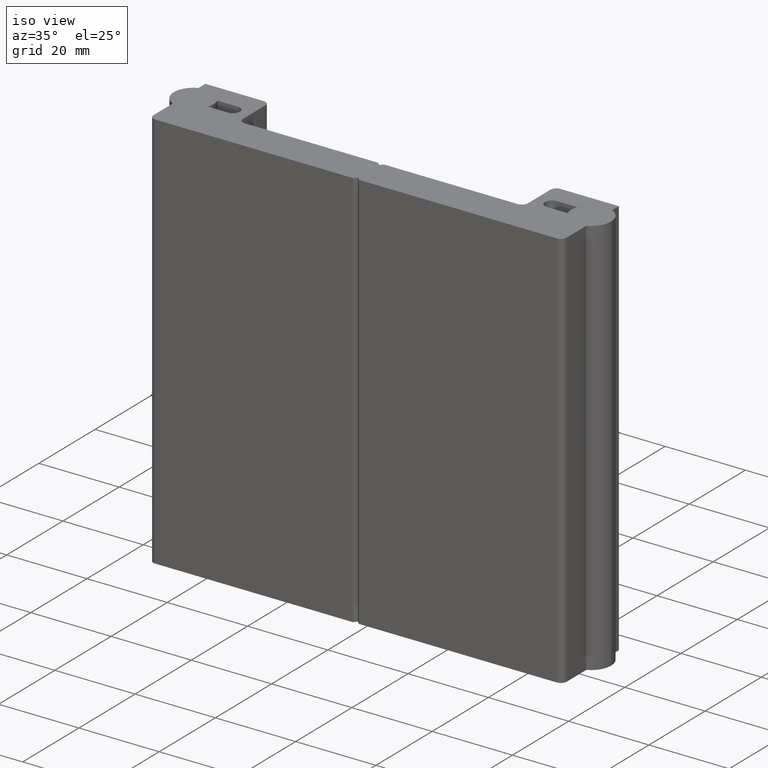
[diagram: clean part render]
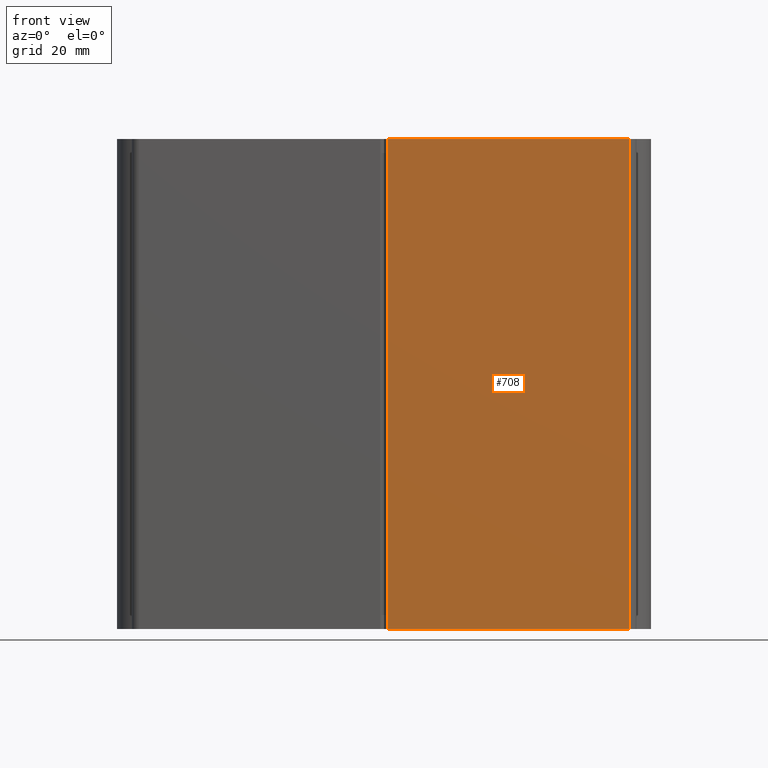
[diagram: tour spotlight — one face highlighted and labeled with its STEP entity id]
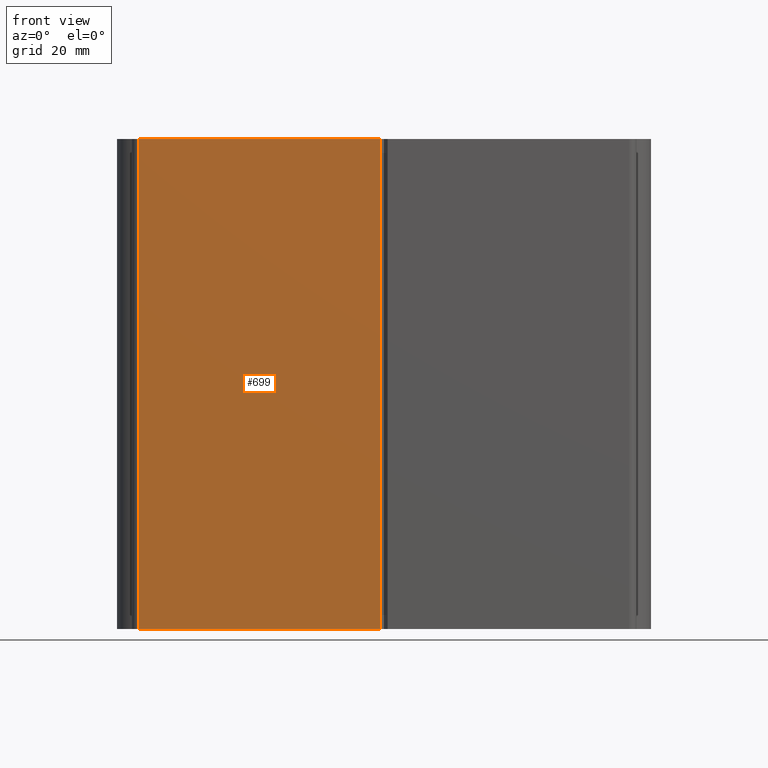
[diagram: tour spotlight — one face highlighted and labeled with its STEP entity id]
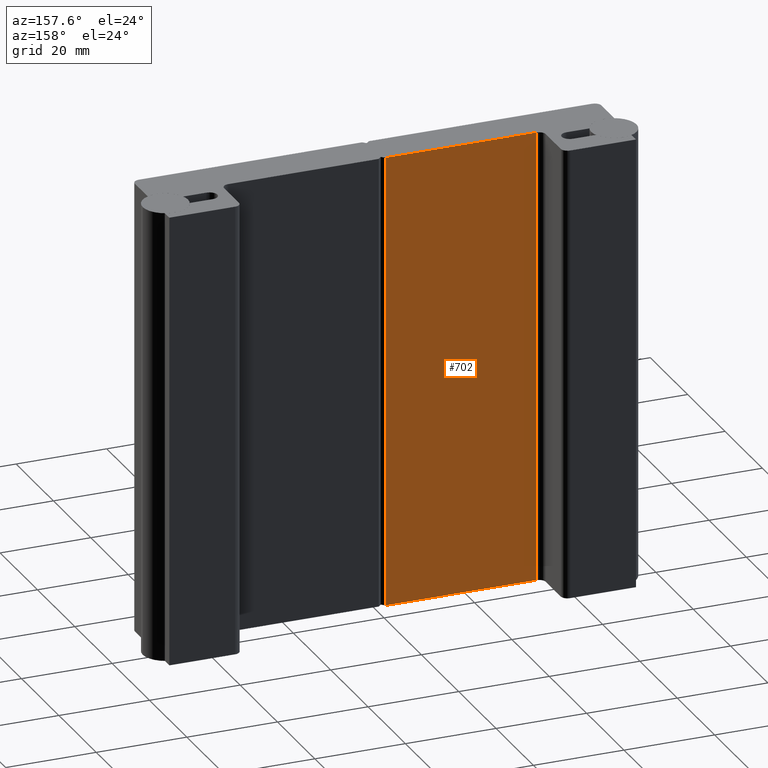
[diagram: tour spotlight — one face highlighted and labeled with its STEP entity id]
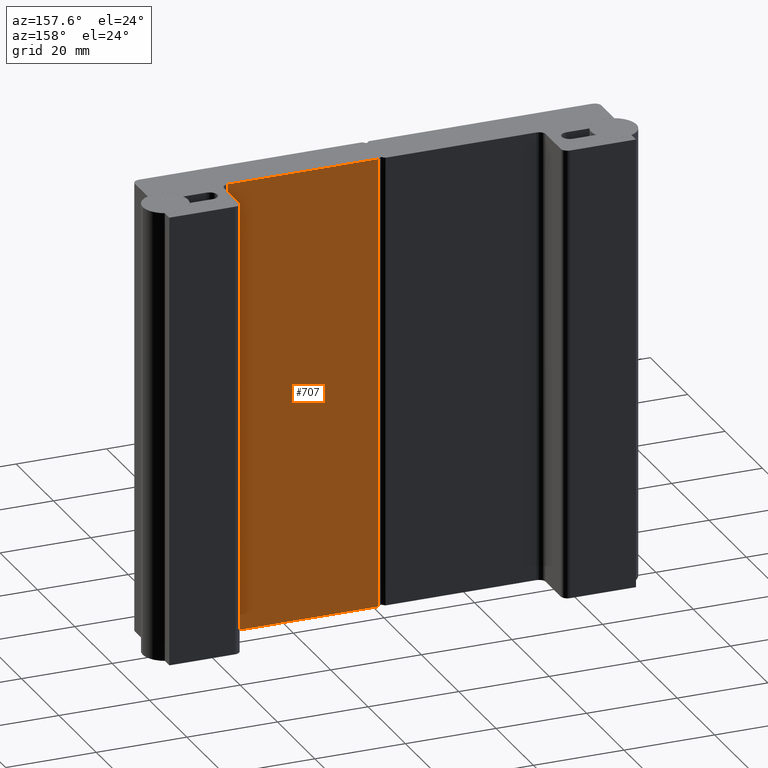
[diagram: tour spotlight — one face highlighted and labeled with its STEP entity id]
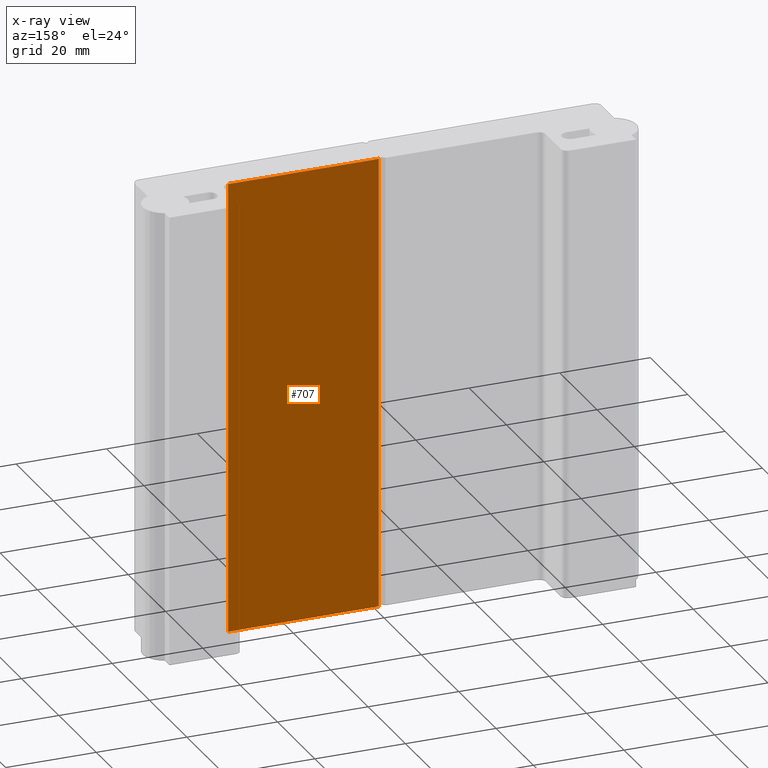
[diagram: x-ray of the same camera — body ghosted, this tour face saturated]
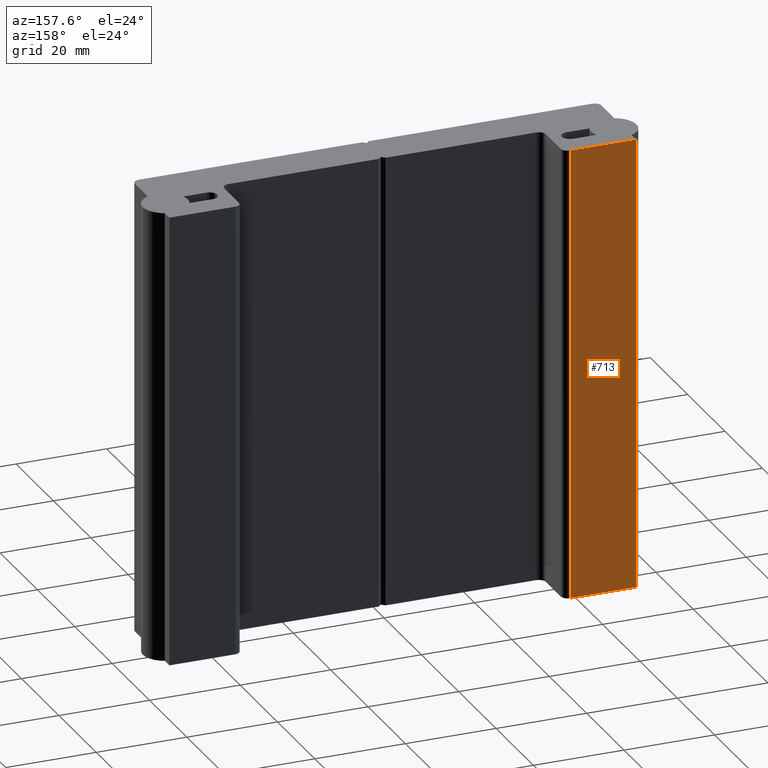
[diagram: tour spotlight — one face highlighted and labeled with its STEP entity id]
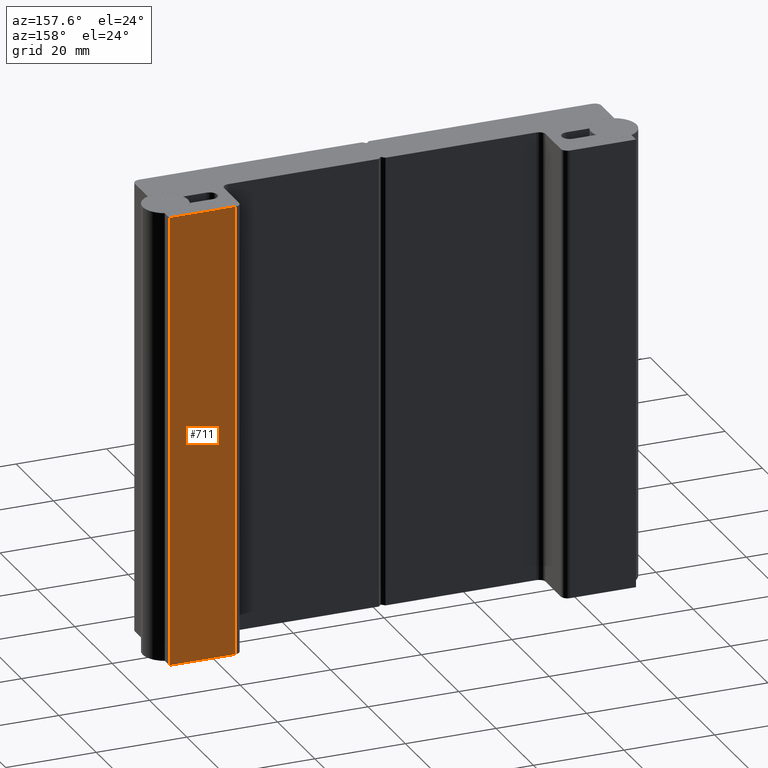
[diagram: tour spotlight — one face highlighted and labeled with its STEP entity id]
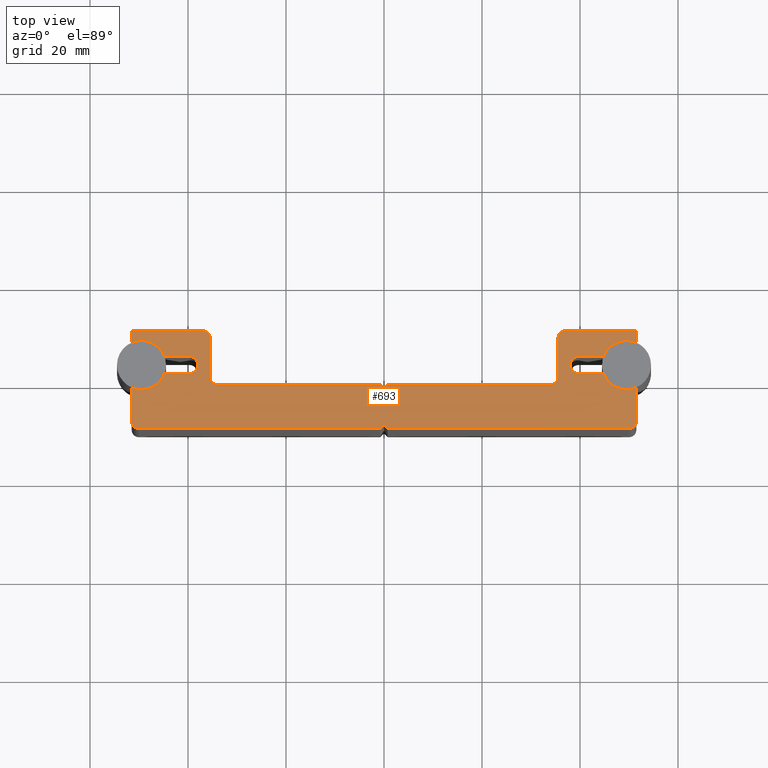
[diagram: tour spotlight — one face highlighted and labeled with its STEP entity id]
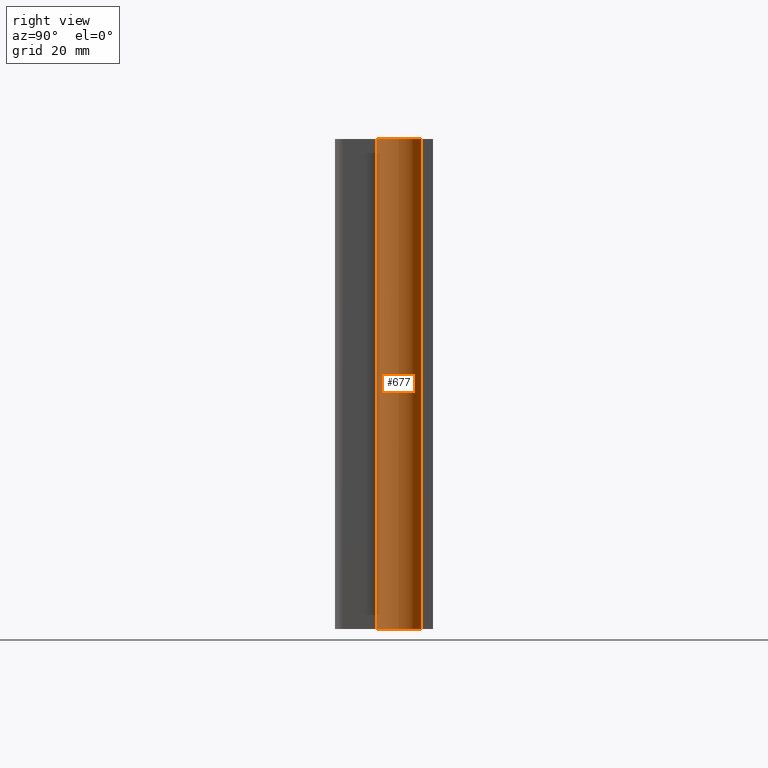
[diagram: tour spotlight — one face highlighted and labeled with its STEP entity id]
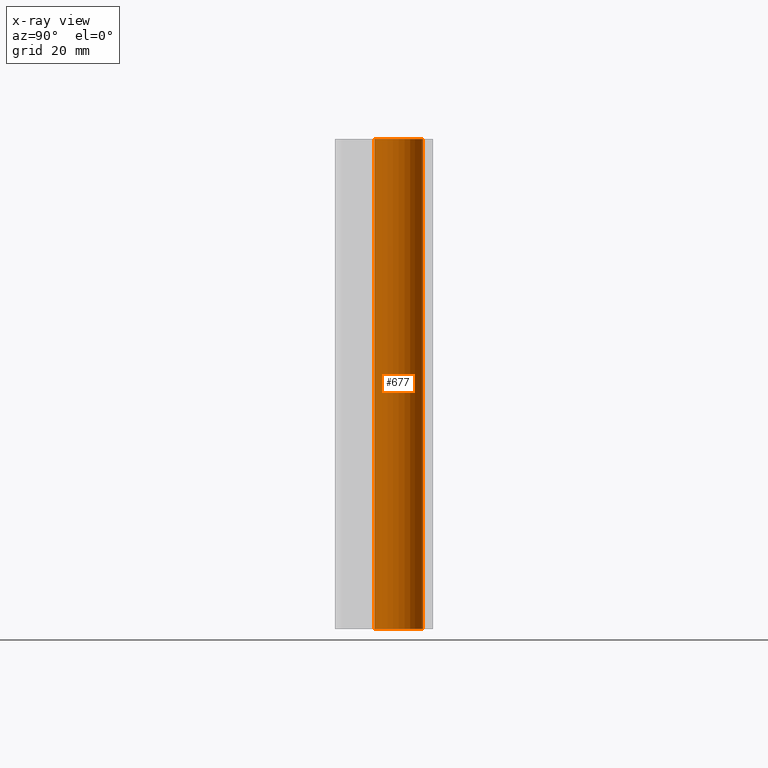
[diagram: x-ray of the same camera — body ghosted, this tour face saturated]
A machine part: a face-by-face anatomy tour. The part has 40 B-rep faces; the first image is the clean iso view, then the 8 largest visible faces are spotlighted one at a time (largest first), each with its STEP entity span.

Face 1 — front view, entity #708. In plain terms, the highlighted planar face has unit normal (0, -1, 0).
Definition (entity closure, byte-faithful):
#49=PLANE('',#820);
#86=FACE_OUTER_BOUND('',#123,.T.);
#123=EDGE_LOOP('',(#640,#641,#642,#643));
#161=LINE('',#1150,#234);
#174=LINE('',#1182,#247);
#188=LINE('',#1214,#261);
#198=LINE('',#1233,#271);
#234=VECTOR('',#933,10.);
#247=VECTOR('',#958,10.);
#261=VECTOR('',#986,10.);
#271=VECTOR('',#1014,10.);
#341=VERTEX_POINT('',#1147);
#342=VERTEX_POINT('',#1149);
#354=VERTEX_POINT('',#1179);
#355=VERTEX_POINT('',#1181);
#418=EDGE_CURVE('',#341,#342,#161,.T.);
#434=EDGE_CURVE('',#354,#355,#174,.T.);
#452=EDGE_CURVE('',#355,#341,#188,.T.);
#462=EDGE_CURVE('',#354,#342,#198,.T.);
#640=ORIENTED_EDGE('',*,*,#452,.F.);
#641=ORIENTED_EDGE('',*,*,#434,.F.);
#642=ORIENTED_EDGE('',*,*,#462,.T.);
#643=ORIENTED_EDGE('',*,*,#418,.F.);
#708=ADVANCED_FACE('',(#86),#49,.T.);
#820=AXIS2_PLACEMENT_3D('',#1237,#1020,#1021);
#933=DIRECTION('',(-1.,0.,0.));
#958=DIRECTION('',(1.,0.,0.));
#986=DIRECTION('',(0.,0.,-1.));
#1014=DIRECTION('',(0.,0.,-1.));
#1020=DIRECTION('center_axis',(0.,-1.,0.));
#1021=DIRECTION('ref_axis',(1.,0.,0.));
#1147=CARTESIAN_POINT('',(50.,-10.,0.));
#1149=CARTESIAN_POINT('',(0.75,-10.,0.));
#1150=CARTESIAN_POINT('',(51.5,-10.,0.));
#1179=CARTESIAN_POINT('',(0.75,-10.,100.));
#1181=CARTESIAN_POINT('',(50.,-10.,100.));
#1182=CARTESIAN_POINT('',(51.5,-10.,100.));
#1214=CARTESIAN_POINT('',(50.,-10.,0.));
#1233=CARTESIAN_POINT('',(0.749999999999997,-10.,50.));
#1237=CARTESIAN_POINT('Origin',(-51.5,-10.,0.));

Face 2 — front view, entity #699. In plain terms, the highlighted planar face has unit normal (0, -1, 0).
Definition (entity closure, byte-faithful):
#42=PLANE('',#811);
#77=FACE_OUTER_BOUND('',#114,.T.);
#114=EDGE_LOOP('',(#604,#605,#606,#607));
#164=LINE('',#1156,#237);
#171=LINE('',#1176,#244);
#191=LINE('',#1219,#264);
#192=LINE('',#1221,#265);
#237=VECTOR('',#936,10.);
#244=VECTOR('',#955,10.);
#264=VECTOR('',#993,10.);
#265=VECTOR('',#996,10.);
#344=VERTEX_POINT('',#1153);
#345=VERTEX_POINT('',#1155);
#351=VERTEX_POINT('',#1173);
#352=VERTEX_POINT('',#1175);
#421=EDGE_CURVE('',#344,#345,#164,.T.);
#431=EDGE_CURVE('',#351,#352,#171,.T.);
#455=EDGE_CURVE('',#345,#351,#191,.T.);
#456=EDGE_CURVE('',#344,#352,#192,.T.);
#604=ORIENTED_EDGE('',*,*,#455,.F.);
#605=ORIENTED_EDGE('',*,*,#421,.F.);
#606=ORIENTED_EDGE('',*,*,#456,.T.);
#607=ORIENTED_EDGE('',*,*,#431,.F.);
#699=ADVANCED_FACE('',(#77),#42,.T.);
#811=AXIS2_PLACEMENT_3D('',#1220,#994,#995);
#936=DIRECTION('',(-1.,0.,0.));
#955=DIRECTION('',(1.,0.,0.));
#993=DIRECTION('',(0.,0.,1.));
#994=DIRECTION('center_axis',(0.,-1.,0.));
#995=DIRECTION('ref_axis',(1.,0.,0.));
#996=DIRECTION('',(0.,0.,1.));
#1153=CARTESIAN_POINT('',(-0.749999999999997,-10.,0.));
#1155=CARTESIAN_POINT('',(-50.,-10.,0.));
#1156=CARTESIAN_POINT('',(51.5,-10.,0.));
#1173=CARTESIAN_POINT('',(-50.,-10.,100.));
#1175=CARTESIAN_POINT('',(-0.749999999999997,-10.,100.));
#1176=CARTESIAN_POINT('',(51.5,-10.,100.));
#1219=CARTESIAN_POINT('',(-50.,-10.,0.));
#1220=CARTESIAN_POINT('Origin',(-51.5,-10.,0.));
#1221=CARTESIAN_POINT('',(-0.750000000000002,-10.,50.));

Face 3 — auxiliary view, entity #702. In plain terms, the highlighted planar face has unit normal (0, -1, 0).
Definition (entity closure, byte-faithful):
#43=PLANE('',#814);
#80=FACE_OUTER_BOUND('',#117,.T.);
#117=EDGE_LOOP('',(#616,#617,#618,#619));
#153=LINE('',#1129,#226);
#182=LINE('',#1203,#255);
#194=LINE('',#1225,#267);
#195=LINE('',#1227,#268);
#226=VECTOR('',#919,10.);
#255=VECTOR('',#972,10.);
#267=VECTOR('',#1002,10.);
#268=VECTOR('',#1005,10.);
#331=VERTEX_POINT('',#1126);
#332=VERTEX_POINT('',#1128);
#364=VERTEX_POINT('',#1200);
#365=VERTEX_POINT('',#1202);
#407=EDGE_CURVE('',#331,#332,#153,.T.);
#445=EDGE_CURVE('',#364,#365,#182,.T.);
#458=EDGE_CURVE('',#365,#331,#194,.T.);
#459=EDGE_CURVE('',#364,#332,#195,.T.);
#616=ORIENTED_EDGE('',*,*,#458,.F.);
#617=ORIENTED_EDGE('',*,*,#445,.F.);
#618=ORIENTED_EDGE('',*,*,#459,.T.);
#619=ORIENTED_EDGE('',*,*,#407,.F.);
#702=ADVANCED_FACE('',(#80),#43,.F.);
#814=AXIS2_PLACEMENT_3D('',#1226,#1003,#1004);
#919=DIRECTION('',(1.,1.2314093406934E-16,0.));
#972=DIRECTION('',(-1.,-1.2314093406934E-16,0.));
#1002=DIRECTION('',(0.,0.,-1.));
#1003=DIRECTION('center_axis',(1.2314093406934E-16,-1.,0.));
#1004=DIRECTION('ref_axis',(-1.,-1.2314093406934E-16,0.));
#1005=DIRECTION('',(0.,0.,-1.));
#1126=CARTESIAN_POINT('',(-34.,-1.,0.));
#1128=CARTESIAN_POINT('',(-0.749999999999997,-1.,0.));
#1129=CARTESIAN_POINT('',(17.75,-0.999999999999998,0.));
#1200=CARTESIAN_POINT('',(-0.749999999999997,-1.,100.));
#1202=CARTESIAN_POINT('',(-34.,-1.,100.));
#1203=CARTESIAN_POINT('',(17.75,-0.999999999999998,100.));
#1225=CARTESIAN_POINT('',(-34.,-1.,100.));
#1226=CARTESIAN_POINT('Origin',(35.5,-0.999999999999996,100.));
#1227=CARTESIAN_POINT('',(-0.750000000000001,-1.,100.));

Face 4 — auxiliary view, entity #707. An x-ray twin of the same camera follows (body ghosted, this face saturated) — the face is partly hidden behind the body. In plain terms, the highlighted planar face has unit normal (0, -1, 0).
Definition (entity closure, byte-faithful):
#48=PLANE('',#819);
#85=FACE_OUTER_BOUND('',#122,.T.);
#122=EDGE_LOOP('',(#636,#637,#638,#639));
#156=LINE('',#1135,#229);
#179=LINE('',#1197,#252);
#193=LINE('',#1223,#266);
#197=LINE('',#1231,#270);
#229=VECTOR('',#922,10.);
#252=VECTOR('',#969,10.);
#266=VECTOR('',#999,10.);
#270=VECTOR('',#1011,10.);
#334=VERTEX_POINT('',#1132);
#335=VERTEX_POINT('',#1134);
#361=VERTEX_POINT('',#1194);
#362=VERTEX_POINT('',#1196);
#410=EDGE_CURVE('',#334,#335,#156,.T.);
#442=EDGE_CURVE('',#361,#362,#179,.T.);
#457=EDGE_CURVE('',#335,#361,#193,.T.);
#461=EDGE_CURVE('',#334,#362,#197,.T.);
#636=ORIENTED_EDGE('',*,*,#457,.F.);
#637=ORIENTED_EDGE('',*,*,#410,.F.);
#638=ORIENTED_EDGE('',*,*,#461,.T.);
#639=ORIENTED_EDGE('',*,*,#442,.F.);
#707=ADVANCED_FACE('',(#85),#48,.F.);
#819=AXIS2_PLACEMENT_3D('',#1236,#1018,#1019);
#922=DIRECTION('',(1.,1.2314093406934E-16,0.));
#969=DIRECTION('',(-1.,-1.2314093406934E-16,0.));
#999=DIRECTION('',(0.,0.,1.));
#1011=DIRECTION('',(0.,0.,1.));
#1018=DIRECTION('center_axis',(1.2314093406934E-16,-1.,0.));
#1019=DIRECTION('ref_axis',(-1.,-1.2314093406934E-16,0.));
#1132=CARTESIAN_POINT('',(0.749999999999997,-1.,0.));
#1134=CARTESIAN_POINT('',(34.,-0.999999999999996,0.));
#1135=CARTESIAN_POINT('',(17.75,-0.999999999999998,0.));
#1194=CARTESIAN_POINT('',(34.,-0.999999999999996,100.));
#1196=CARTESIAN_POINT('',(0.749999999999997,-1.,100.));
#1197=CARTESIAN_POINT('',(17.75,-0.999999999999998,100.));
#1223=CARTESIAN_POINT('',(34.,-0.999999999999996,100.));
#1231=CARTESIAN_POINT('',(0.749999999999997,-1.,100.));
#1236=CARTESIAN_POINT('Origin',(35.5,-0.999999999999996,100.));

Face 5 — auxiliary view, entity #713. In plain terms, the highlighted planar face has unit normal (0, 1, 0).
Definition (entity closure, byte-faithful):
#54=PLANE('',#825);
#91=FACE_OUTER_BOUND('',#128,.T.);
#128=EDGE_LOOP('',(#660,#661,#662,#663));
#151=LINE('',#1121,#224);
#166=LINE('',#1162,#239);
#183=LINE('',#1206,#256);
#201=LINE('',#1243,#274);
#224=VECTOR('',#913,10.);
#239=VECTOR('',#942,10.);
#256=VECTOR('',#975,10.);
#274=VECTOR('',#1031,10.);
#327=VERTEX_POINT('',#1118);
#328=VERTEX_POINT('',#1120);
#347=VERTEX_POINT('',#1161);
#366=VERTEX_POINT('',#1205);
#403=EDGE_CURVE('',#327,#328,#151,.T.);
#424=EDGE_CURVE('',#328,#347,#166,.T.);
#447=EDGE_CURVE('',#347,#366,#183,.T.);
#465=EDGE_CURVE('',#327,#366,#201,.T.);
#660=ORIENTED_EDGE('',*,*,#424,.F.);
#661=ORIENTED_EDGE('',*,*,#403,.F.);
#662=ORIENTED_EDGE('',*,*,#465,.T.);
#663=ORIENTED_EDGE('',*,*,#447,.F.);
#713=ADVANCED_FACE('',(#91),#54,.T.);
#825=AXIS2_PLACEMENT_3D('',#1244,#1032,#1033);
#913=DIRECTION('',(1.,0.,0.));
#942=DIRECTION('',(0.,0.,1.));
#975=DIRECTION('',(-1.,0.,0.));
#1031=DIRECTION('',(0.,0.,1.));
#1032=DIRECTION('center_axis',(0.,1.,0.));
#1033=DIRECTION('ref_axis',(-1.,0.,0.));
#1118=CARTESIAN_POINT('',(-51.5,10.,0.));
#1120=CARTESIAN_POINT('',(-37.,10.,0.));
#1121=CARTESIAN_POINT('',(-51.5,10.,0.));
#1161=CARTESIAN_POINT('',(-37.,10.,100.));
#1162=CARTESIAN_POINT('',(-37.,10.,50.));
#1205=CARTESIAN_POINT('',(-51.5,10.,100.));
#1206=CARTESIAN_POINT('',(-51.5,10.,100.));
#1243=CARTESIAN_POINT('',(-51.5,10.,0.));
#1244=CARTESIAN_POINT('Origin',(51.5,10.,0.));

Face 6 — auxiliary view, entity #711. In plain terms, the highlighted planar face has unit normal (0, 1, 0).
Definition (entity closure, byte-faithful):
#52=PLANE('',#823);
#89=FACE_OUTER_BOUND('',#126,.T.);
#126=EDGE_LOOP('',(#652,#653,#654,#655));
#158=LINE('',#1143,#231);
#177=LINE('',#1189,#250);
#185=LINE('',#1209,#258);
#200=LINE('',#1240,#273);
#231=VECTOR('',#928,10.);
#250=VECTOR('',#963,10.);
#258=VECTOR('',#979,10.);
#273=VECTOR('',#1026,10.);
#338=VERTEX_POINT('',#1140);
#339=VERTEX_POINT('',#1142);
#357=VERTEX_POINT('',#1186);
#358=VERTEX_POINT('',#1188);
#414=EDGE_CURVE('',#338,#339,#158,.T.);
#438=EDGE_CURVE('',#357,#358,#177,.T.);
#449=EDGE_CURVE('',#358,#338,#185,.T.);
#464=EDGE_CURVE('',#339,#357,#200,.T.);
#652=ORIENTED_EDGE('',*,*,#449,.F.);
#653=ORIENTED_EDGE('',*,*,#438,.F.);
#654=ORIENTED_EDGE('',*,*,#464,.F.);
#655=ORIENTED_EDGE('',*,*,#414,.F.);
#711=ADVANCED_FACE('',(#89),#52,.T.);
#823=AXIS2_PLACEMENT_3D('',#1241,#1027,#1028);
#928=DIRECTION('',(1.,0.,0.));
#963=DIRECTION('',(-1.,0.,0.));
#979=DIRECTION('',(0.,0.,-1.));
#1026=DIRECTION('',(0.,0.,1.));
#1027=DIRECTION('center_axis',(0.,1.,0.));
#1028=DIRECTION('ref_axis',(-1.,0.,0.));
#1140=CARTESIAN_POINT('',(37.,10.,0.));
#1142=CARTESIAN_POINT('',(51.5,10.,0.));
#1143=CARTESIAN_POINT('',(-51.5,10.,0.));
#1186=CARTESIAN_POINT('',(51.5,10.,100.));
#1188=CARTESIAN_POINT('',(37.,10.,100.));
#1189=CARTESIAN_POINT('',(-51.5,10.,100.));
#1209=CARTESIAN_POINT('',(37.,10.,50.));
#1240=CARTESIAN_POINT('',(51.5,10.,0.));
#1241=CARTESIAN_POINT('Origin',(51.5,10.,0.));

Face 7 — top view, entity #693. In plain terms, the highlighted planar face has unit normal (0, 0, 1).
Definition (entity closure, byte-faithful):
#39=PLANE('',#800);
#71=FACE_OUTER_BOUND('',#108,.T.);
#108=EDGE_LOOP('',(#552,#553,#554,#555,#556,#557,#558,#559,#560,#561,#562,
#563,#564,#565,#566,#567,#568,#569,#570,#571,#572,#573,#574,#575,#576,#577,
#578,#579,#580,#581,#582,#583));
#132=LINE('',#1058,#205);
#136=LINE('',#1067,#209);
#140=LINE('',#1079,#213);
#144=LINE('',#1088,#217);
#168=LINE('',#1168,#241);
#170=LINE('',#1172,#243);
#171=LINE('',#1176,#244);
#172=LINE('',#1178,#245);
#173=LINE('',#1180,#246);
#174=LINE('',#1182,#247);
#175=LINE('',#1185,#248);
#176=LINE('',#1187,#249);
#177=LINE('',#1189,#250);
#178=LINE('',#1193,#251);
#179=LINE('',#1197,#252);
#180=LINE('',#1199,#253);
#181=LINE('',#1201,#254);
#182=LINE('',#1203,#255);
#183=LINE('',#1206,#256);
#184=LINE('',#1207,#257);
#205=VECTOR('',#850,10.);
#209=VECTOR('',#856,10.);
#213=VECTOR('',#868,10.);
#217=VECTOR('',#874,10.);
#241=VECTOR('',#948,10.);
#243=VECTOR('',#952,10.);
#244=VECTOR('',#955,10.);
#245=VECTOR('',#956,10.);
#246=VECTOR('',#957,10.);
#247=VECTOR('',#958,10.);
#248=VECTOR('',#961,10.);
#249=VECTOR('',#962,10.);
#250=VECTOR('',#963,10.);
#251=VECTOR('',#966,10.);
#252=VECTOR('',#969,10.);
#253=VECTOR('',#970,10.);
#254=VECTOR('',#971,10.);
#255=VECTOR('',#972,10.);
#256=VECTOR('',#975,10.);
#257=VECTOR('',#976,10.);
#278=CIRCLE('',#772,1.75);
#280=CIRCLE('',#777,1.75);
#281=CIRCLE('',#779,5.);
#284=CIRCLE('',#783,5.);
#285=CIRCLE('',#785,5.);
#288=CIRCLE('',#789,5.);
#295=CIRCLE('',#798,1.5);
#296=CIRCLE('',#801,1.5);
#297=CIRCLE('',#802,1.5);
#298=CIRCLE('',#803,1.5);
#299=CIRCLE('',#804,1.5);
#300=CIRCLE('',#805,1.5);
#305=VERTEX_POINT('',#1055);
#306=VERTEX_POINT('',#1057);
#309=VERTEX_POINT('',#1064);
#310=VERTEX_POINT('',#1066);
#313=VERTEX_POINT('',#1076);
#314=VERTEX_POINT('',#1078);
#317=VERTEX_POINT('',#1085);
#318=VERTEX_POINT('',#1087);
#319=VERTEX_POINT('',#1094);
#322=VERTEX_POINT('',#1102);
#323=VERTEX_POINT('',#1106);
#326=VERTEX_POINT('',#1114);
#347=VERTEX_POINT('',#1161);
#348=VERTEX_POINT('',#1163);
#349=VERTEX_POINT('',#1167);
#350=VERTEX_POINT('',#1171);
#351=VERTEX_POINT('',#1173);
#352=VERTEX_POINT('',#1175);
#353=VERTEX_POINT('',#1177);
#354=VERTEX_POINT('',#1179);
#355=VERTEX_POINT('',#1181);
#356=VERTEX_POINT('',#1183);
#357=VERTEX_POINT('',#1186);
#358=VERTEX_POINT('',#1188);
#359=VERTEX_POINT('',#1190);
#360=VERTEX_POINT('',#1192);
#361=VERTEX_POINT('',#1194);
#362=VERTEX_POINT('',#1196);
#363=VERTEX_POINT('',#1198);
#364=VERTEX_POINT('',#1200);
#365=VERTEX_POINT('',#1202);
#366=VERTEX_POINT('',#1205);
#372=EDGE_CURVE('',#306,#305,#132,.T.);
#376=EDGE_CURVE('',#310,#309,#136,.T.);
#379=EDGE_CURVE('',#305,#310,#278,.T.);
#382=EDGE_CURVE('',#314,#313,#140,.T.);
#386=EDGE_CURVE('',#318,#317,#144,.T.);
#389=EDGE_CURVE('',#313,#318,#280,.T.);
#390=EDGE_CURVE('',#319,#306,#281,.T.);
#395=EDGE_CURVE('',#309,#322,#284,.T.);
#396=EDGE_CURVE('',#323,#314,#285,.T.);
#401=EDGE_CURVE('',#317,#326,#288,.T.);
#425=EDGE_CURVE('',#347,#348,#295,.T.);
#427=EDGE_CURVE('',#349,#348,#168,.T.);
#429=EDGE_CURVE('',#322,#350,#170,.T.);
#430=EDGE_CURVE('',#351,#350,#296,.T.);
#431=EDGE_CURVE('',#351,#352,#171,.T.);
#432=EDGE_CURVE('',#352,#353,#172,.T.);
#433=EDGE_CURVE('',#353,#354,#173,.T.);
#434=EDGE_CURVE('',#354,#355,#174,.T.);
#435=EDGE_CURVE('',#356,#355,#297,.T.);
#436=EDGE_CURVE('',#356,#323,#175,.T.);
#437=EDGE_CURVE('',#326,#357,#176,.T.);
#438=EDGE_CURVE('',#357,#358,#177,.T.);
#439=EDGE_CURVE('',#359,#358,#298,.T.);
#440=EDGE_CURVE('',#359,#360,#178,.T.);
#441=EDGE_CURVE('',#361,#360,#299,.T.);
#442=EDGE_CURVE('',#361,#362,#179,.T.);
#443=EDGE_CURVE('',#362,#363,#180,.T.);
#444=EDGE_CURVE('',#363,#364,#181,.T.);
#445=EDGE_CURVE('',#364,#365,#182,.T.);
#446=EDGE_CURVE('',#349,#365,#300,.T.);
#447=EDGE_CURVE('',#347,#366,#183,.T.);
#448=EDGE_CURVE('',#366,#319,#184,.T.);
#552=ORIENTED_EDGE('',*,*,#376,.T.);
#553=ORIENTED_EDGE('',*,*,#395,.T.);
#554=ORIENTED_EDGE('',*,*,#429,.T.);
#555=ORIENTED_EDGE('',*,*,#430,.F.);
#556=ORIENTED_EDGE('',*,*,#431,.T.);
#557=ORIENTED_EDGE('',*,*,#432,.T.);
#558=ORIENTED_EDGE('',*,*,#433,.T.);
#559=ORIENTED_EDGE('',*,*,#434,.T.);
#560=ORIENTED_EDGE('',*,*,#435,.F.);
#561=ORIENTED_EDGE('',*,*,#436,.T.);
#562=ORIENTED_EDGE('',*,*,#396,.T.);
#563=ORIENTED_EDGE('',*,*,#382,.T.);
#564=ORIENTED_EDGE('',*,*,#389,.T.);
#565=ORIENTED_EDGE('',*,*,#386,.T.);
#566=ORIENTED_EDGE('',*,*,#401,.T.);
#567=ORIENTED_EDGE('',*,*,#437,.T.);
#568=ORIENTED_EDGE('',*,*,#438,.T.);
#569=ORIENTED_EDGE('',*,*,#439,.F.);
#570=ORIENTED_EDGE('',*,*,#440,.T.);
#571=ORIENTED_EDGE('',*,*,#441,.F.);
#572=ORIENTED_EDGE('',*,*,#442,.T.);
#573=ORIENTED_EDGE('',*,*,#443,.T.);
#574=ORIENTED_EDGE('',*,*,#444,.T.);
#575=ORIENTED_EDGE('',*,*,#445,.T.);
#576=ORIENTED_EDGE('',*,*,#446,.F.);
#577=ORIENTED_EDGE('',*,*,#427,.T.);
#578=ORIENTED_EDGE('',*,*,#425,.F.);
#579=ORIENTED_EDGE('',*,*,#447,.T.);
#580=ORIENTED_EDGE('',*,*,#448,.T.);
#581=ORIENTED_EDGE('',*,*,#390,.T.);
#582=ORIENTED_EDGE('',*,*,#372,.T.);
#583=ORIENTED_EDGE('',*,*,#379,.T.);
#693=ADVANCED_FACE('',(#71),#39,.T.);
#772=AXIS2_PLACEMENT_3D('',#1071,#862,#863);
#777=AXIS2_PLACEMENT_3D('',#1092,#880,#881);
#779=AXIS2_PLACEMENT_3D('',#1095,#884,#885);
#783=AXIS2_PLACEMENT_3D('',#1104,#894,#895);
#785=AXIS2_PLACEMENT_3D('',#1107,#898,#899);
#789=AXIS2_PLACEMENT_3D('',#1116,#908,#909);
#798=AXIS2_PLACEMENT_3D('',#1164,#943,#944);
#800=AXIS2_PLACEMENT_3D('',#1170,#950,#951);
#801=AXIS2_PLACEMENT_3D('',#1174,#953,#954);
#802=AXIS2_PLACEMENT_3D('',#1184,#959,#960);
#803=AXIS2_PLACEMENT_3D('',#1191,#964,#965);
#804=AXIS2_PLACEMENT_3D('',#1195,#967,#968);
#805=AXIS2_PLACEMENT_3D('',#1204,#973,#974);
#850=DIRECTION('',(1.,-5.47852304786845E-16,0.));
#856=DIRECTION('',(-1.,5.47852304786845E-16,0.));
#862=DIRECTION('center_axis',(0.,0.,-1.));
#863=DIRECTION('ref_axis',(0.,-1.,0.));
#868=DIRECTION('',(-1.,5.47852304786845E-16,0.));
#874=DIRECTION('',(1.,-5.47852304786845E-16,0.));
#880=DIRECTION('center_axis',(0.,0.,-1.));
#881=DIRECTION('ref_axis',(0.,1.,0.));
#884=DIRECTION('center_axis',(0.,0.,-1.));
#885=DIRECTION('ref_axis',(-1.,0.,0.));
#894=DIRECTION('center_axis',(0.,0.,-1.));
#895=DIRECTION('ref_axis',(-1.,0.,0.));
#898=DIRECTION('center_axis',(0.,0.,-1.));
#899=DIRECTION('ref_axis',(-1.,0.,0.));
#908=DIRECTION('center_axis',(0.,0.,-1.));
#909=DIRECTION('ref_axis',(-1.,0.,0.));
#943=DIRECTION('center_axis',(0.,0.,-1.));
#944=DIRECTION('ref_axis',(0.707106781186549,0.707106781186546,0.));
#948=DIRECTION('',(4.03717463500057E-16,1.,0.));
#950=DIRECTION('center_axis',(0.,0.,1.));
#951=DIRECTION('ref_axis',(1.,0.,0.));
#952=DIRECTION('',(0.,-1.,0.));
#953=DIRECTION('center_axis',(0.,0.,-1.));
#954=DIRECTION('ref_axis',(-0.707106781186549,-0.707106781186546,0.));
#955=DIRECTION('',(1.,0.,0.));
#956=DIRECTION('',(0.707106781186547,0.707106781186548,0.));
#957=DIRECTION('',(0.707106781186548,-0.707106781186547,0.));
#958=DIRECTION('',(1.,0.,0.));
#959=DIRECTION('center_axis',(0.,0.,-1.));
#960=DIRECTION('ref_axis',(0.707106781186549,-0.707106781186546,0.));
#961=DIRECTION('',(0.,1.,0.));
#962=DIRECTION('',(0.,1.,0.));
#963=DIRECTION('',(-1.,0.,0.));
#964=DIRECTION('center_axis',(0.,0.,-1.));
#965=DIRECTION('ref_axis',(-0.707106781186549,0.707106781186546,0.));
#966=DIRECTION('',(0.,-1.,0.));
#967=DIRECTION('center_axis',(0.,0.,1.));
#968=DIRECTION('ref_axis',(0.707106781186548,-0.707106781186547,0.));
#969=DIRECTION('',(-1.,-1.2314093406934E-16,0.));
#970=DIRECTION('',(-0.707106781186546,-0.707106781186549,0.));
#971=DIRECTION('',(-0.707106781186546,0.707106781186549,0.));
#972=DIRECTION('',(-1.,-1.2314093406934E-16,0.));
#973=DIRECTION('center_axis',(0.,0.,1.));
#974=DIRECTION('ref_axis',(-0.707106781186548,-0.707106781186547,0.));
#975=DIRECTION('',(-1.,0.,0.));
#976=DIRECTION('',(0.,-1.,0.));
#1055=CARTESIAN_POINT('',(-39.75,4.75,100.));
#1057=CARTESIAN_POINT('',(-44.8162515012012,4.75,100.));
#1058=CARTESIAN_POINT('',(-22.4081257506006,4.74999999999999,100.));
#1064=CARTESIAN_POINT('',(-44.8162515012012,1.25,100.));
#1066=CARTESIAN_POINT('',(-39.75,1.25,100.));
#1067=CARTESIAN_POINT('',(-19.875,1.24999999999999,100.));
#1071=CARTESIAN_POINT('Origin',(-39.75,3.,100.));
#1076=CARTESIAN_POINT('',(39.75,1.25,100.));
#1078=CARTESIAN_POINT('',(44.8162515012012,1.25,100.));
#1079=CARTESIAN_POINT('',(22.4081257506006,1.25000000000001,100.));
#1085=CARTESIAN_POINT('',(44.8162515012012,4.75,100.));
#1087=CARTESIAN_POINT('',(39.75,4.75,100.));
#1088=CARTESIAN_POINT('',(19.875,4.75000000000001,100.));
#1092=CARTESIAN_POINT('Origin',(39.75,3.,100.));
#1094=CARTESIAN_POINT('',(-51.5,7.58257569495584,100.));
#1095=CARTESIAN_POINT('Origin',(-49.5,3.,100.));
#1102=CARTESIAN_POINT('',(-51.5,-1.58257569495584,100.));
#1104=CARTESIAN_POINT('Origin',(-49.5,3.,100.));
#1106=CARTESIAN_POINT('',(51.5,-1.58257569495584,100.));
#1107=CARTESIAN_POINT('Origin',(49.5,3.,100.));
#1114=CARTESIAN_POINT('',(51.5,7.58257569495584,100.));
#1116=CARTESIAN_POINT('Origin',(49.5,3.,100.));
#1161=CARTESIAN_POINT('',(-37.,10.,100.));
#1163=CARTESIAN_POINT('',(-35.5,8.5,100.));
#1164=CARTESIAN_POINT('Origin',(-37.,8.5,100.));
#1167=CARTESIAN_POINT('',(-35.5,0.499999999999996,100.));
#1168=CARTESIAN_POINT('',(-35.5,-0.499999999999996,100.));
#1170=CARTESIAN_POINT('Origin',(0.,0.,100.));
#1171=CARTESIAN_POINT('',(-51.5,-8.5,100.));
#1172=CARTESIAN_POINT('',(-51.5,-10.,100.));
#1173=CARTESIAN_POINT('',(-50.,-10.,100.));
#1174=CARTESIAN_POINT('Origin',(-50.,-8.5,100.));
#1175=CARTESIAN_POINT('',(-0.749999999999997,-10.,100.));
#1176=CARTESIAN_POINT('',(51.5,-10.,100.));
#1177=CARTESIAN_POINT('',(0.,-9.25,100.));
#1178=CARTESIAN_POINT('',(1.9375,-7.3125,100.));
#1179=CARTESIAN_POINT('',(0.75,-10.,100.));
#1180=CARTESIAN_POINT('',(-2.3125,-6.9375,100.));
#1181=CARTESIAN_POINT('',(50.,-10.,100.));
#1182=CARTESIAN_POINT('',(51.5,-10.,100.));
#1183=CARTESIAN_POINT('',(51.5,-8.5,100.));
#1184=CARTESIAN_POINT('Origin',(50.,-8.5,100.));
#1185=CARTESIAN_POINT('',(51.5,10.,100.));
#1186=CARTESIAN_POINT('',(51.5,10.,100.));
#1187=CARTESIAN_POINT('',(51.5,10.,100.));
#1188=CARTESIAN_POINT('',(37.,10.,100.));
#1189=CARTESIAN_POINT('',(-51.5,10.,100.));
#1190=CARTESIAN_POINT('',(35.5,8.5,100.));
#1191=CARTESIAN_POINT('Origin',(37.,8.5,100.));
#1192=CARTESIAN_POINT('',(35.5,0.500000000000004,100.));
#1193=CARTESIAN_POINT('',(35.5,5.,100.));
#1194=CARTESIAN_POINT('',(34.,-0.999999999999996,100.));
#1195=CARTESIAN_POINT('Origin',(34.,0.500000000000004,100.));
#1196=CARTESIAN_POINT('',(0.749999999999997,-1.,100.));
#1197=CARTESIAN_POINT('',(17.75,-0.999999999999998,100.));
#1198=CARTESIAN_POINT('',(-3.27927592723218E-16,-1.75,100.));
#1199=CARTESIAN_POINT('',(0.812499999999999,-0.937499999999999,100.));
#1200=CARTESIAN_POINT('',(-0.749999999999997,-1.,100.));
#1201=CARTESIAN_POINT('',(-0.4375,-1.3125,100.));
#1202=CARTESIAN_POINT('',(-34.,-1.,100.));
#1203=CARTESIAN_POINT('',(17.75,-0.999999999999998,100.));
#1204=CARTESIAN_POINT('Origin',(-34.,0.499999999999995,100.));
#1205=CARTESIAN_POINT('',(-51.5,10.,100.));
#1206=CARTESIAN_POINT('',(-51.5,10.,100.));
#1207=CARTESIAN_POINT('',(-51.5,-10.,100.));

Face 8 — right view, entity #677. An x-ray twin of the same camera follows (body ghosted, this face saturated) — the face is partly hidden behind the body. In plain terms, the highlighted cylindrical surface (bore or boss wall) has radius 5 mm, axis along (0, 0, 1).
Definition (entity closure, byte-faithful):
#55=FACE_OUTER_BOUND('',#92,.T.);
#92=EDGE_LOOP('',(#466,#467,#468,#469));
#129=LINE('',#1046,#202);
#202=VECTOR('',#837,5.);
#275=CIRCLE('',#763,5.);
#276=CIRCLE('',#764,5.);
#301=VERTEX_POINT('',#1043);
#302=VERTEX_POINT('',#1045);
#367=EDGE_CURVE('',#301,#301,#275,.T.);
#368=EDGE_CURVE('',#301,#302,#129,.T.);
#369=EDGE_CURVE('',#302,#302,#276,.T.);
#466=ORIENTED_EDGE('',*,*,#367,.F.);
#467=ORIENTED_EDGE('',*,*,#368,.T.);
#468=ORIENTED_EDGE('',*,*,#369,.F.);
#469=ORIENTED_EDGE('',*,*,#368,.F.);
#664=CYLINDRICAL_SURFACE('',#762,5.);
#677=ADVANCED_FACE('',(#55),#664,.T.);
#762=AXIS2_PLACEMENT_3D('',#1042,#833,#834);
#763=AXIS2_PLACEMENT_3D('',#1044,#835,#836);
#764=AXIS2_PLACEMENT_3D('',#1047,#838,#839);
#833=DIRECTION('center_axis',(0.,0.,1.));
#834=DIRECTION('ref_axis',(-1.,0.,0.));
#835=DIRECTION('center_axis',(0.,0.,1.));
#836=DIRECTION('ref_axis',(-1.,0.,0.));
#837=DIRECTION('',(0.,0.,-1.));
#838=DIRECTION('center_axis',(0.,0.,-1.));
#839=DIRECTION('ref_axis',(-1.,0.,0.));
#1042=CARTESIAN_POINT('Origin',(0.,0.,0.));
#1043=CARTESIAN_POINT('',(5.,6.12323399573677E-16,100.));
#1044=CARTESIAN_POINT('Origin',(0.,0.,100.));
#1045=CARTESIAN_POINT('',(5.,6.12323399573677E-16,0.));
#1046=CARTESIAN_POINT('',(5.,6.12323399573677E-16,0.));
#1047=CARTESIAN_POINT('Origin',(0.,0.,0.));